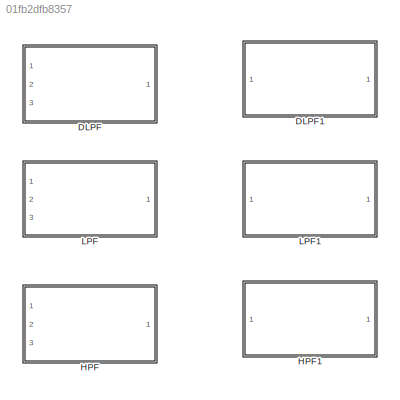
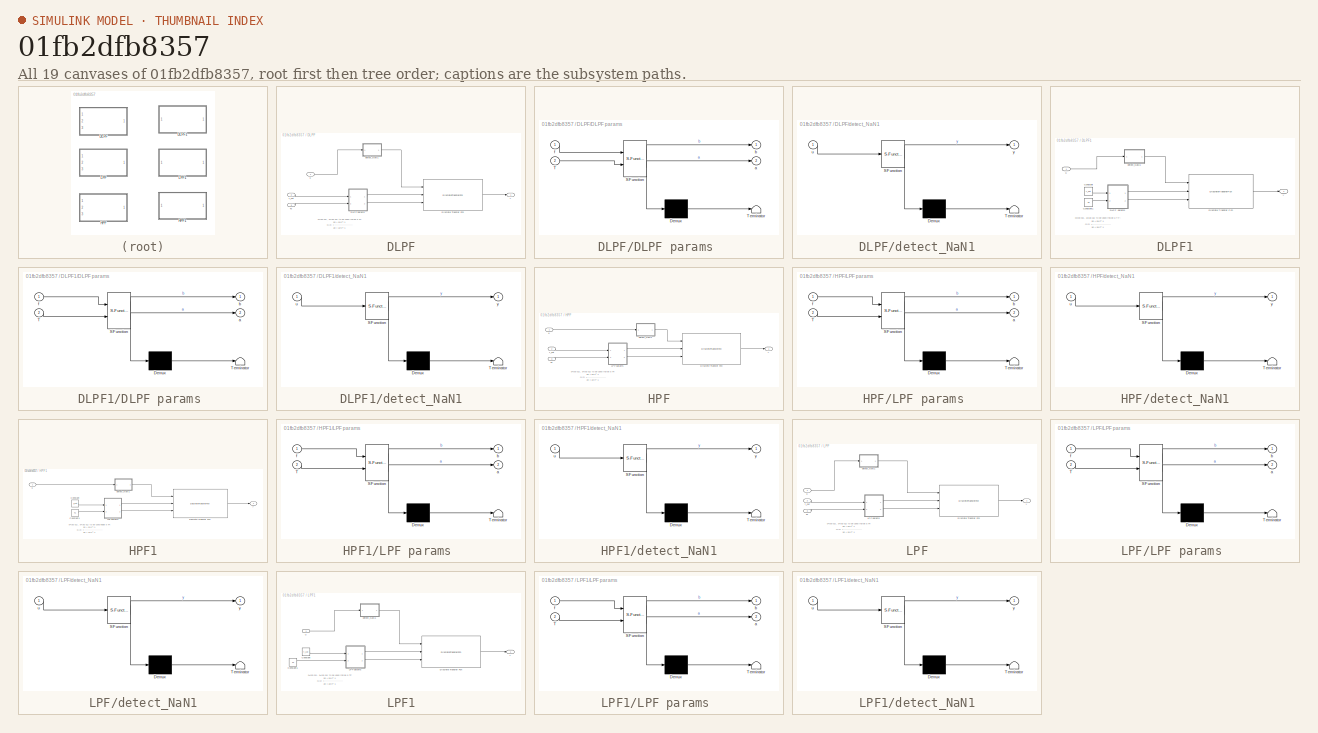
[diagram: thumbnail index - all 19 canvases of the model, root first then tree order]
MODEL slx_01fb2dfb8357
KIND library
CONFIG AbsTol = auto
CONFIG EnableMultiTasking = off
CONFIG FixedStep = auto
CONFIG MaxStep = auto
CONFIG MinStep = auto
CONFIG RelTol = 1e-3
CONFIG SampleTimeConstraint = Unconstrained
CONFIG Solver = VariableStepAuto
CONFIG SolverName = VariableStepAuto
CONFIG StartTime = 0.0
CONFIG StopTime = 10.0
BLOCK [SubSystem] DLPF
  Ports = [3, 1]
  RequestExecContextInheritance = off
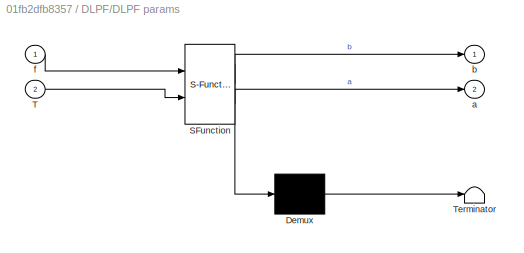
BLOCK [SubSystem] DLPF/DLPF params 
  ErrorFcn = Stateflow.Translate.translate
  PermitHierarchicalResolution = ExplicitOnly
  Ports = [2, 2]
  RequestExecContextInheritance = off
  SFBlockType = MATLAB Function
  TreatAsAtomicUnit = on
BLOCK [Demux] DLPF/DLPF params / Demux 
  Outputs = 1
  Ports = [1, 1]
BLOCK [S-Function] DLPF/DLPF params / SFunction 
  EnableBusSupport = on
  FunctionName = sf_sfun
  PortCounts = [2 3]
  Ports = [2, 3]
  SFcnIsStateOwnerBlock = off
  SFunctionDeploymentMode = off
  Tag = Stateflow S-Function 6
BLOCK [Terminator] DLPF/DLPF params / Terminator 
BLOCK [Inport] DLPF/DLPF params /T
  IconDisplay = Port number
  Port = 2
BLOCK [Outport] DLPF/DLPF params /a
  IconDisplay = Port number
  Port = 2
BLOCK [Outport] DLPF/DLPF params /b
  IconDisplay = Port number
BLOCK [Inport] DLPF/DLPF params /f
  IconDisplay = Port number
BLOCK [DiscreteTransferFcn] DLPF/Discrete Transfer Fcn
  DenominatorSource = Input port
  InputPortMap = u0,p1,p3
  NumeratorSource = Input port
  Ports = [3, 1]
  a0EqualsOne = on
BLOCK [Inport] DLPF/Ts
  IconDisplay = Port number
  Port = 3
BLOCK [SubSystem] DLPF/detect_NaN1
  ErrorFcn = Stateflow.Translate.translate
  PermitHierarchicalResolution = ExplicitOnly
  Ports = [1, 1]
  RequestExecContextInheritance = off
  SFBlockType = MATLAB Function
  TreatAsAtomicUnit = on
BLOCK [Demux] DLPF/detect_NaN1/ Demux 
  Outputs = 1
  Ports = [1, 1]
BLOCK [S-Function] DLPF/detect_NaN1/ SFunction 
  EnableBusSupport = off
  FunctionName = sf_sfun
  PortCounts = [1 2]
  Ports = [1, 2]
  SFcnIsStateOwnerBlock = off
  SFunctionDeploymentMode = off
  Tag = Stateflow S-Function 16
BLOCK [Terminator] DLPF/detect_NaN1/ Terminator 
BLOCK [Inport] DLPF/detect_NaN1/u
  IconDisplay = Port number
BLOCK [Outport] DLPF/detect_NaN1/y
  IconDisplay = Port number
BLOCK [Inport] DLPF/f_cut
  IconDisplay = Port number
  Port = 2
BLOCK [Inport] DLPF/u
  IconDisplay = Port number
BLOCK [Outport] DLPF/y
  IconDisplay = Port number
BLOCK [SubSystem] DLPF1
  Ports = [1, 1]
  RequestExecContextInheritance = off
BLOCK [Constant] DLPF1/Constant
  Value = f_cut
BLOCK [Constant] DLPF1/Constant1
  Value = Ts
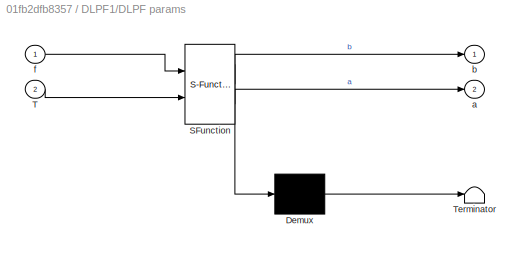
BLOCK [SubSystem] DLPF1/DLPF params 
  ErrorFcn = Stateflow.Translate.translate
  PermitHierarchicalResolution = ExplicitOnly
  Ports = [2, 2]
  RequestExecContextInheritance = off
  SFBlockType = MATLAB Function
  TreatAsAtomicUnit = on
BLOCK [Demux] DLPF1/DLPF params / Demux 
  Outputs = 1
  Ports = [1, 1]
BLOCK [S-Function] DLPF1/DLPF params / SFunction 
  EnableBusSupport = off
  FunctionName = sf_sfun
  PortCounts = [2 3]
  Ports = [2, 3]
  SFcnIsStateOwnerBlock = off
  SFunctionDeploymentMode = off
  Tag = Stateflow S-Function 2
BLOCK [Terminator] DLPF1/DLPF params / Terminator 
BLOCK [Inport] DLPF1/DLPF params /T
  IconDisplay = Port number
  Port = 2
BLOCK [Outport] DLPF1/DLPF params /a
  IconDisplay = Port number
  Port = 2
BLOCK [Outport] DLPF1/DLPF params /b
  IconDisplay = Port number
BLOCK [Inport] DLPF1/DLPF params /f
  IconDisplay = Port number
BLOCK [DiscreteTransferFcn] DLPF1/Discrete Transfer Fcn
  DenominatorSource = Input port
  InputPortMap = u0,p1,p3
  NumeratorSource = Input port
  Ports = [3, 1]
  a0EqualsOne = on
BLOCK [SubSystem] DLPF1/detect_NaN1
  ErrorFcn = Stateflow.Translate.translate
  PermitHierarchicalResolution = ExplicitOnly
  Ports = [1, 1]
  RequestExecContextInheritance = off
  SFBlockType = MATLAB Function
  TreatAsAtomicUnit = on
BLOCK [Demux] DLPF1/detect_NaN1/ Demux 
  Outputs = 1
  Ports = [1, 1]
BLOCK [S-Function] DLPF1/detect_NaN1/ SFunction 
  EnableBusSupport = off
  FunctionName = sf_sfun
  PortCounts = [1 2]
  Ports = [1, 2]
  SFcnIsStateOwnerBlock = off
  SFunctionDeploymentMode = off
  Tag = Stateflow S-Function 15
BLOCK [Terminator] DLPF1/detect_NaN1/ Terminator 
BLOCK [Inport] DLPF1/detect_NaN1/u
  IconDisplay = Port number
BLOCK [Outport] DLPF1/detect_NaN1/y
  IconDisplay = Port number
BLOCK [Inport] DLPF1/u
  IconDisplay = Port number
BLOCK [Outport] DLPF1/y
  IconDisplay = Port number
BLOCK [SubSystem] HPF
  Ports = [3, 1]
  RequestExecContextInheritance = off
BLOCK [DiscreteTransferFcn] HPF/Discrete Transfer Fcn
  DenominatorSource = Input port
  InputPortMap = u0,p1,p3
  NumeratorSource = Input port
  Ports = [3, 1]
  a0EqualsOne = on
BLOCK [SubSystem] HPF/LPF params 
  ErrorFcn = Stateflow.Translate.translate
  PermitHierarchicalResolution = ExplicitOnly
  Ports = [2, 2]
  RequestExecContextInheritance = off
  SFBlockType = MATLAB Function
  TreatAsAtomicUnit = on
BLOCK [Demux] HPF/LPF params / Demux 
  Outputs = 1
  Ports = [1, 1]
BLOCK [S-Function] HPF/LPF params / SFunction 
  EnableBusSupport = off
  FunctionName = sf_sfun
  PortCounts = [2 3]
  Ports = [2, 3]
  SFcnIsStateOwnerBlock = off
  SFunctionDeploymentMode = off
  Tag = Stateflow S-Function 4
BLOCK [Terminator] HPF/LPF params / Terminator 
BLOCK [Inport] HPF/LPF params /T
  IconDisplay = Port number
  Port = 2
BLOCK [Outport] HPF/LPF params /a
  IconDisplay = Port number
  Port = 2
BLOCK [Outport] HPF/LPF params /b
  IconDisplay = Port number
BLOCK [Inport] HPF/LPF params /f
  IconDisplay = Port number
BLOCK [Inport] HPF/Ts
  IconDisplay = Port number
  Port = 3
BLOCK [SubSystem] HPF/detect_NaN1
  ErrorFcn = Stateflow.Translate.translate
  PermitHierarchicalResolution = ExplicitOnly
  Ports = [1, 1]
  RequestExecContextInheritance = off
  SFBlockType = MATLAB Function
  TreatAsAtomicUnit = on
BLOCK [Demux] HPF/detect_NaN1/ Demux 
  Outputs = 1
  Ports = [1, 1]
BLOCK [S-Function] HPF/detect_NaN1/ SFunction 
  EnableBusSupport = off
  FunctionName = sf_sfun
  PortCounts = [1 2]
  Ports = [1, 2]
  SFcnIsStateOwnerBlock = off
  SFunctionDeploymentMode = off
  Tag = Stateflow S-Function 18
BLOCK [Terminator] HPF/detect_NaN1/ Terminator 
BLOCK [Inport] HPF/detect_NaN1/u
  IconDisplay = Port number
BLOCK [Outport] HPF/detect_NaN1/y
  IconDisplay = Port number
BLOCK [Inport] HPF/f_cut
  IconDisplay = Port number
  Port = 2
BLOCK [Inport] HPF/u
  IconDisplay = Port number
BLOCK [Outport] HPF/y
  IconDisplay = Port number
BLOCK [SubSystem] HPF1
  Ports = [1, 1]
  RequestExecContextInheritance = off
BLOCK [Constant] HPF1/Constant
  Value = f_cut
BLOCK [Constant] HPF1/Constant1
  Value = Ts
BLOCK [DiscreteTransferFcn] HPF1/Discrete Transfer Fcn
  DenominatorSource = Input port
  InputPortMap = u0,p1,p3
  NumeratorSource = Input port
  Ports = [3, 1]
  a0EqualsOne = on
BLOCK [SubSystem] HPF1/LPF params 
  ErrorFcn = Stateflow.Translate.translate
  PermitHierarchicalResolution = ExplicitOnly
  Ports = [2, 2]
  RequestExecContextInheritance = off
  SFBlockType = MATLAB Function
  TreatAsAtomicUnit = on
BLOCK [Demux] HPF1/LPF params / Demux 
  Outputs = 1
  Ports = [1, 1]
BLOCK [S-Function] HPF1/LPF params / SFunction 
  EnableBusSupport = off
  FunctionName = sf_sfun
  PortCounts = [2 3]
  Ports = [2, 3]
  SFcnIsStateOwnerBlock = off
  SFunctionDeploymentMode = off
  Tag = Stateflow S-Function 5
BLOCK [Terminator] HPF1/LPF params / Terminator 
BLOCK [Inport] HPF1/LPF params /T
  IconDisplay = Port number
  Port = 2
BLOCK [Outport] HPF1/LPF params /a
  IconDisplay = Port number
  Port = 2
BLOCK [Outport] HPF1/LPF params /b
  IconDisplay = Port number
BLOCK [Inport] HPF1/LPF params /f
  IconDisplay = Port number
BLOCK [SubSystem] HPF1/detect_NaN1
  ErrorFcn = Stateflow.Translate.translate
  PermitHierarchicalResolution = ExplicitOnly
  Ports = [1, 1]
  RequestExecContextInheritance = off
  SFBlockType = MATLAB Function
  TreatAsAtomicUnit = on
BLOCK [Demux] HPF1/detect_NaN1/ Demux 
  Outputs = 1
  Ports = [1, 1]
BLOCK [S-Function] HPF1/detect_NaN1/ SFunction 
  EnableBusSupport = off
  FunctionName = sf_sfun
  PortCounts = [1 2]
  Ports = [1, 2]
  SFcnIsStateOwnerBlock = off
  SFunctionDeploymentMode = off
  Tag = Stateflow S-Function 13
BLOCK [Terminator] HPF1/detect_NaN1/ Terminator 
BLOCK [Inport] HPF1/detect_NaN1/u
  IconDisplay = Port number
BLOCK [Outport] HPF1/detect_NaN1/y
  IconDisplay = Port number
BLOCK [Inport] HPF1/u
  IconDisplay = Port number
BLOCK [Outport] HPF1/y
  IconDisplay = Port number
BLOCK [SubSystem] LPF
  Ports = [3, 1]
  RequestExecContextInheritance = off
BLOCK [DiscreteTransferFcn] LPF/Discrete Transfer Fcn
  DenominatorSource = Input port
  InputPortMap = u0,p1,p3
  NumeratorSource = Input port
  Ports = [3, 1]
  a0EqualsOne = on
BLOCK [SubSystem] LPF/LPF params 
  ErrorFcn = Stateflow.Translate.translate
  PermitHierarchicalResolution = ExplicitOnly
  Ports = [2, 2]
  RequestExecContextInheritance = off
  SFBlockType = MATLAB Function
  TreatAsAtomicUnit = on
BLOCK [Demux] LPF/LPF params / Demux 
  Outputs = 1
  Ports = [1, 1]
BLOCK [S-Function] LPF/LPF params / SFunction 
  EnableBusSupport = off
  FunctionName = sf_sfun
  PortCounts = [2 3]
  Ports = [2, 3]
  SFcnIsStateOwnerBlock = off
  SFunctionDeploymentMode = off
  Tag = Stateflow S-Function 1
BLOCK [Terminator] LPF/LPF params / Terminator 
BLOCK [Inport] LPF/LPF params /T
  IconDisplay = Port number
  Port = 2
BLOCK [Outport] LPF/LPF params /a
  IconDisplay = Port number
  Port = 2
BLOCK [Outport] LPF/LPF params /b
  IconDisplay = Port number
BLOCK [Inport] LPF/LPF params /f
  IconDisplay = Port number
BLOCK [Inport] LPF/Ts
  IconDisplay = Port number
  Port = 3
BLOCK [SubSystem] LPF/detect_NaN1
  ErrorFcn = Stateflow.Translate.translate
  PermitHierarchicalResolution = ExplicitOnly
  Ports = [1, 1]
  RequestExecContextInheritance = off
  SFBlockType = MATLAB Function
  TreatAsAtomicUnit = on
BLOCK [Demux] LPF/detect_NaN1/ Demux 
  Outputs = 1
  Ports = [1, 1]
BLOCK [S-Function] LPF/detect_NaN1/ SFunction 
  EnableBusSupport = off
  FunctionName = sf_sfun
  PortCounts = [1 2]
  Ports = [1, 2]
  SFcnIsStateOwnerBlock = off
  SFunctionDeploymentMode = off
  Tag = Stateflow S-Function 17
BLOCK [Terminator] LPF/detect_NaN1/ Terminator 
BLOCK [Inport] LPF/detect_NaN1/u
  IconDisplay = Port number
BLOCK [Outport] LPF/detect_NaN1/y
  IconDisplay = Port number
BLOCK [Inport] LPF/f_cut
  IconDisplay = Port number
  Port = 2
BLOCK [Inport] LPF/u
  IconDisplay = Port number
BLOCK [Outport] LPF/y
  IconDisplay = Port number
BLOCK [SubSystem] LPF1
  Ports = [1, 1]
  RequestExecContextInheritance = off
BLOCK [Constant] LPF1/Constant
  Value = f_cut
BLOCK [Constant] LPF1/Constant1
  Value = Ts
BLOCK [DiscreteTransferFcn] LPF1/Discrete Transfer Fcn
  DenominatorSource = Input port
  InputPortMap = u0,p1,p3
  NumeratorSource = Input port
  Ports = [3, 1]
  a0EqualsOne = on
BLOCK [SubSystem] LPF1/LPF params 
  ErrorFcn = Stateflow.Translate.translate
  PermitHierarchicalResolution = ExplicitOnly
  Ports = [2, 2]
  RequestExecContextInheritance = off
  SFBlockType = MATLAB Function
  TreatAsAtomicUnit = on
BLOCK [Demux] LPF1/LPF params / Demux 
  Outputs = 1
  Ports = [1, 1]
BLOCK [S-Function] LPF1/LPF params / SFunction 
  EnableBusSupport = off
  FunctionName = sf_sfun
  PortCounts = [2 3]
  Ports = [2, 3]
  SFcnIsStateOwnerBlock = off
  SFunctionDeploymentMode = off
  Tag = Stateflow S-Function 3
BLOCK [Terminator] LPF1/LPF params / Terminator 
BLOCK [Inport] LPF1/LPF params /T
  IconDisplay = Port number
  Port = 2
BLOCK [Outport] LPF1/LPF params /a
  IconDisplay = Port number
  Port = 2
BLOCK [Outport] LPF1/LPF params /b
  IconDisplay = Port number
BLOCK [Inport] LPF1/LPF params /f
  IconDisplay = Port number
BLOCK [SubSystem] LPF1/detect_NaN1
  ErrorFcn = Stateflow.Translate.translate
  PermitHierarchicalResolution = ExplicitOnly
  Ports = [1, 1]
  RequestExecContextInheritance = off
  SFBlockType = MATLAB Function
  TreatAsAtomicUnit = on
BLOCK [Demux] LPF1/detect_NaN1/ Demux 
  Outputs = 1
  Ports = [1, 1]
BLOCK [S-Function] LPF1/detect_NaN1/ SFunction 
  EnableBusSupport = off
  FunctionName = sf_sfun
  PortCounts = [1 2]
  Ports = [1, 2]
  SFcnIsStateOwnerBlock = off
  SFunctionDeploymentMode = off
  Tag = Stateflow S-Function 14
BLOCK [Terminator] LPF1/detect_NaN1/ Terminator 
BLOCK [Inport] LPF1/detect_NaN1/u
  IconDisplay = Port number
BLOCK [Outport] LPF1/detect_NaN1/y
  IconDisplay = Port number
BLOCK [Inport] LPF1/u
  IconDisplay = Port number
BLOCK [Outport] LPF1/y
  IconDisplay = Port number
ANNOTATION DLPF: b=[b0 b1], a=[a0 a1] to be used inside a TF: b0 + b1*z^-1 G(z) = ------------------ a0 + a1*z^-1
ANNOTATION DLPF1: b=[b0 b1], a=[a0 a1] to be used inside a TF: b0 + b1*z^-1 G(z) = ------------------ a0 + a1*z^-1
ANNOTATION HPF: b=[b0 b1], a=[a0 a1] to be used inside a TF: b0 + b1*z^-1 G(z) = ------------------ a0 + a1*z^-1
ANNOTATION HPF1: b=[b0 b1], a=[a0 a1] to be used inside a TF: b0 + b1*z^-1 G(z) = ------------------ a0 + a1*z^-1
ANNOTATION LPF: b=[b0 b1], a=[a0 a1] to be used inside a TF: b0 + b1*z^-1 G(z) = ------------------ a0 + a1*z^-1
ANNOTATION LPF1: b=[b0 b1], a=[a0 a1] to be used inside a TF: b0 + b1*z^-1 G(z) = ------------------ a0 + a1*z^-1
LINE DLPF/DLPF params :1 -> DLPF/Discrete Transfer Fcn:2
LINE DLPF/DLPF params :2 -> DLPF/Discrete Transfer Fcn:3
LINE DLPF/Discrete Transfer Fcn:1 -> DLPF/y:1
LINE DLPF/Ts:1 -> DLPF/DLPF params :2
LINE DLPF/detect_NaN1:1 -> DLPF/Discrete Transfer Fcn:1
LINE DLPF/f_cut:1 -> DLPF/DLPF params :1
LINE DLPF/u:1 -> DLPF/detect_NaN1:1
LINE DLPF1/Constant1:1 -> DLPF1/DLPF params :2
LINE DLPF1/Constant:1 -> DLPF1/DLPF params :1
LINE DLPF1/DLPF params :1 -> DLPF1/Discrete Transfer Fcn:2
LINE DLPF1/DLPF params :2 -> DLPF1/Discrete Transfer Fcn:3
LINE DLPF1/Discrete Transfer Fcn:1 -> DLPF1/y:1
LINE DLPF1/detect_NaN1:1 -> DLPF1/Discrete Transfer Fcn:1
LINE DLPF1/u:1 -> DLPF1/detect_NaN1:1
LINE HPF/Discrete Transfer Fcn:1 -> HPF/y:1
LINE HPF/LPF params :1 -> HPF/Discrete Transfer Fcn:2
LINE HPF/LPF params :2 -> HPF/Discrete Transfer Fcn:3
LINE HPF/Ts:1 -> HPF/LPF params :2
LINE HPF/detect_NaN1:1 -> HPF/Discrete Transfer Fcn:1
LINE HPF/f_cut:1 -> HPF/LPF params :1
LINE HPF/u:1 -> HPF/detect_NaN1:1
LINE HPF1/Constant1:1 -> HPF1/LPF params :2
LINE HPF1/Constant:1 -> HPF1/LPF params :1
LINE HPF1/Discrete Transfer Fcn:1 -> HPF1/y:1
LINE HPF1/LPF params :1 -> HPF1/Discrete Transfer Fcn:2
LINE HPF1/LPF params :2 -> HPF1/Discrete Transfer Fcn:3
LINE HPF1/detect_NaN1:1 -> HPF1/Discrete Transfer Fcn:1
LINE HPF1/u:1 -> HPF1/detect_NaN1:1
LINE LPF/Discrete Transfer Fcn:1 -> LPF/y:1
LINE LPF/LPF params :1 -> LPF/Discrete Transfer Fcn:2
LINE LPF/LPF params :2 -> LPF/Discrete Transfer Fcn:3
LINE LPF/Ts:1 -> LPF/LPF params :2
LINE LPF/detect_NaN1:1 -> LPF/Discrete Transfer Fcn:1
LINE LPF/f_cut:1 -> LPF/LPF params :1
LINE LPF/u:1 -> LPF/detect_NaN1:1
LINE LPF1/Constant1:1 -> LPF1/LPF params :2
LINE LPF1/Constant:1 -> LPF1/LPF params :1
LINE LPF1/Discrete Transfer Fcn:1 -> LPF1/y:1
LINE LPF1/LPF params :1 -> LPF1/Discrete Transfer Fcn:2
LINE LPF1/LPF params :2 -> LPF1/Discrete Transfer Fcn:3
LINE LPF1/detect_NaN1:1 -> LPF1/Discrete Transfer Fcn:1
LINE LPF1/u:1 -> LPF1/detect_NaN1:1
CHART LPF/LPF params
   states=1 transitions=1
  STATE_LABEL 'eML_blk_kernel()'
  STATE_LABEL 'SCRIPT:\nfunction [b, a] = fcn(f, T)\n\nb0 = pi*f*T/(pi*f*T+1);\nb1 = b0;\n\na0 = 1;\na1 = (pi*f*T-1)/(pi*f*T+1);\n\na = [a0 a1]; \nb = [b0 b1];\n'
CHART DLPF1/DLPF params
   states=1 transitions=1
  STATE_LABEL 'eML_blk_kernel()'
  STATE_LABEL 'SCRIPT:\nfunction [b, a] = fcn(f, T)\n\nb0 = 2*pi*f/(pi*f*T+1);\nb1 = -b0;\n\na0 = 1;\na1 = (pi*f*T-1)/(pi*f*T+1);\n\nb = [b0 b1];\na = [a0 a1];'
CHART LPF1/LPF params
   states=1 transitions=1
  STATE_LABEL 'eML_blk_kernel()'
  STATE_LABEL 'SCRIPT:\nfunction [b, a] = fcn(f, T)\n\nb0 = pi*f*T/(pi*f*T+1);\nb1 = b0;\n\na0 = 1;\na1 = (pi*f*T-1)/(pi*f*T+1);\n\na = [a0 a1]; \nb = [b0 b1];\n'
CHART HPF/LPF params
   states=1 transitions=1
  STATE_LABEL 'eML_blk_kernel()'
  STATE_LABEL 'SCRIPT:\nfunction [b, a] = fcn(f, T)\n\nb0 = pi*f*T/(pi*f*T+1);\nb1 = b0;\n\na0 = 1;\na1 = (pi*f*T-1)/(pi*f*T+1);\n\na = [a0 a1]; \nb = [b0 b1];\n'
CHART HPF1/LPF params
   states=1 transitions=1
  STATE_LABEL 'eML_blk_kernel()'
  STATE_LABEL 'SCRIPT:\nfunction [b, a] = fcn(f, T)\n\nb0 = pi*f*T/(pi*f*T+1);\nb1 = b0;\n\na0 = 1;\na1 = (pi*f*T-1)/(pi*f*T+1);\n\na = [a0 a1]; \nb = [b0 b1];\n'
CHART DLPF/DLPF params
   states=1 transitions=1
  STATE_LABEL 'eML_blk_kernel()'
  STATE_LABEL 'SCRIPT:\nfunction [b, a] = fcn(f, T)\n\nb0 = 2*pi*f/(pi*f*T+1);\nb1 = -b0;\n\na0 = 1;\na1 = (pi*f*T-1)/(pi*f*T+1);\n\nb = [b0 b1];\na = [a0 a1];'
CHART HPF1/detect_NaN1 states=1 transitions=1
  STATE_LABEL 'eML_blk_kernel()'
  STATE_LABEL 'SCRIPT:\nfunction y = detect_NaN(u)\ny =u;\n y(isnan(u))= 0;\n\n\n\n'
CHART LPF1/detect_NaN1 states=1 transitions=1
  STATE_LABEL 'eML_blk_kernel()'
  STATE_LABEL 'SCRIPT:\nfunction y = detect_NaN(u)\ny =u;\n y(isnan(u))= 0;\n\n\n\n'
CHART DLPF1/detect_NaN1 states=1 transitions=1
  STATE_LABEL 'eML_blk_kernel()'
  STATE_LABEL 'SCRIPT:\nfunction y = detect_NaN(u)\ny =u;\n y(isnan(u))= 0;\n\n\n\n'
CHART DLPF/detect_NaN1 states=1 transitions=1
  STATE_LABEL 'eML_blk_kernel()'
  STATE_LABEL 'SCRIPT:\nfunction y = detect_NaN(u)\n\n\ny =u;\n y(isnan(u))= 0;\n\n'
CHART LPF/detect_NaN1 states=1 transitions=1
  STATE_LABEL 'eML_blk_kernel()'
  STATE_LABEL 'SCRIPT:\nfunction y = detect_NaN(u)\n\n\ny =u;\n y(isnan(u))= 0;\n\n\n'
CHART HPF/detect_NaN1 states=1 transitions=1
  STATE_LABEL 'eML_blk_kernel()'
  STATE_LABEL 'SCRIPT:\nfunction y = detect_NaN(u)\ny =u;\n y(isnan(u))= 0;\n\n\n\n'
